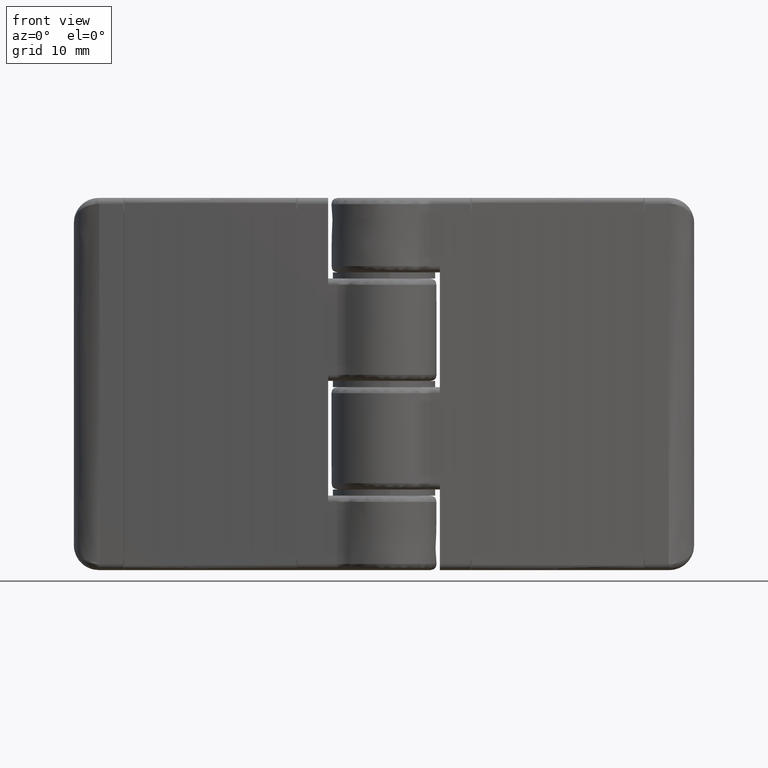
[diagram: clean part render]
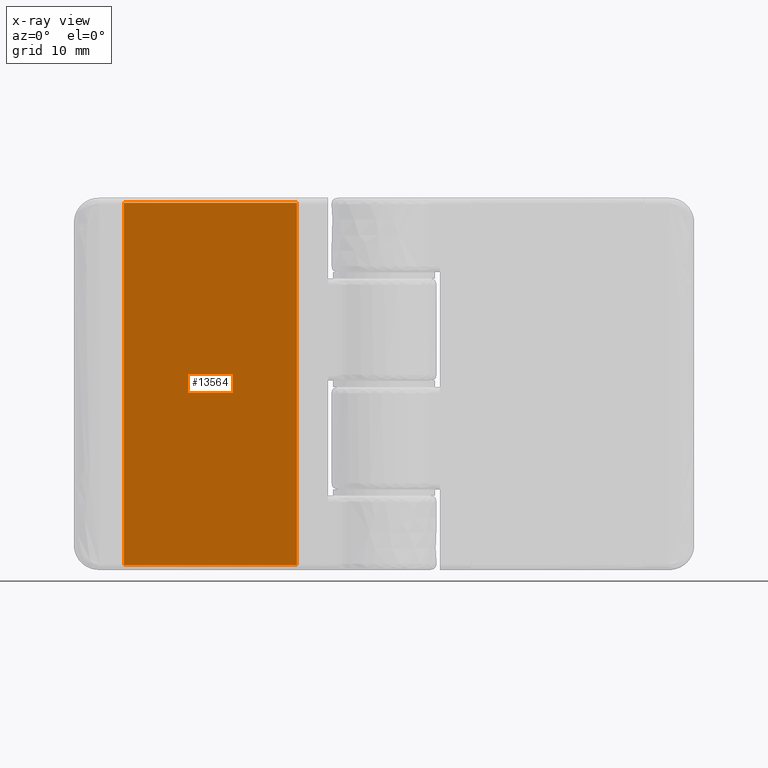
[diagram: x-ray — body ghosted, one internal face saturated and labeled with its STEP entity id]
A machine part, front view, then the same camera in x-ray: the body is ghosted and one INTERNAL B-rep face — a face not visible from any outside direction — is saturated and labeled: STEP entity #13564.
In plain terms, the highlighted face is a freeform B-spline surface patch.
Its self-contained STEP definition (entity closure, byte-faithful):
#13412=CARTESIAN_POINT('',(-14.050000000000001,-4.296944128323120,0.800000000000023));
#13413=VERTEX_POINT('',#13412);
#13414=CARTESIAN_POINT('',(-41.950000000000003,-1.856009758832120,0.800000000000023));
#13415=VERTEX_POINT('',#13414);
#13416=CARTESIAN_POINT('',(-14.050000000000001,-4.296944128323120,0.800000000000023));
#13417=CARTESIAN_POINT('',(-41.950000000000003,-1.856009758832120,0.800000000000023));
#13418=QUASI_UNIFORM_CURVE('',1,(#13416,#13417),.UNSPECIFIED.,.F.,.U.);
#13419=EDGE_CURVE('',#13413,#13415,#13418,.T.);
#13478=CARTESIAN_POINT('',(-14.050000000000001,-4.296944128323120,59.200000000000003));
#13479=VERTEX_POINT('',#13478);
#13480=CARTESIAN_POINT('',(-41.950000000000003,-1.856009758832120,59.200000000000003));
#13481=VERTEX_POINT('',#13480);
#13482=CARTESIAN_POINT('',(-14.050000000000001,-4.296944128323120,59.200000000000003));
#13483=CARTESIAN_POINT('',(-41.950000000000003,-1.856009758832120,59.200000000000003));
#13484=QUASI_UNIFORM_CURVE('',1,(#13482,#13483),.UNSPECIFIED.,.F.,.U.);
#13485=EDGE_CURVE('',#13479,#13481,#13484,.T.);
#13545=CARTESIAN_POINT('',(-43.343605731640103,-1.734085023065808,-2.117079886809445));
#13546=CARTESIAN_POINT('',(-12.656394268359900,-4.418868864089428,-2.117079886809445));
#13547=CARTESIAN_POINT('',(-43.343605731640103,-1.734085023065808,62.117081453219541));
#13548=CARTESIAN_POINT('',(-12.656394268359900,-4.418868864089428,62.117081453219541));
#13549=B_SPLINE_SURFACE_WITH_KNOTS('',1,1,((#13545,#13547),(#13546,#13548)),.UNSPECIFIED.,.F.,.F.,.U.,(2,2),(2,2),(0.0,30.804431688721309),(0.0,64.234161340028990),.UNSPECIFIED.);
#13550=ORIENTED_EDGE('',*,*,#13419,.T.);
#13551=CARTESIAN_POINT('',(-41.950000000000003,-1.856009758832120,59.200000000000003));
#13552=CARTESIAN_POINT('',(-41.950000000000003,-1.856009758832120,0.800000000000023));
#13553=QUASI_UNIFORM_CURVE('',1,(#13551,#13552),.UNSPECIFIED.,.F.,.U.);
#13554=EDGE_CURVE('',#13481,#13415,#13553,.T.);
#13555=ORIENTED_EDGE('',*,*,#13554,.F.);
#13556=ORIENTED_EDGE('',*,*,#13485,.F.);
#13557=CARTESIAN_POINT('',(-14.050000000000001,-4.296944128323120,59.200000000000003));
#13558=CARTESIAN_POINT('',(-14.050000000000001,-4.296944128323120,0.800000000000023));
#13559=QUASI_UNIFORM_CURVE('',1,(#13557,#13558),.UNSPECIFIED.,.F.,.U.);
#13560=EDGE_CURVE('',#13479,#13413,#13559,.T.);
#13561=ORIENTED_EDGE('',*,*,#13560,.T.);
#13562=EDGE_LOOP('',(#13550,#13555,#13556,#13561));
#13563=FACE_OUTER_BOUND('',#13562,.T.);
#13564=ADVANCED_FACE('',(#13563),#13549,.F.);